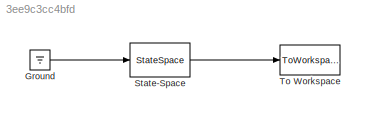
MODEL slx_3ee9c3cc4bfd
KIND model
CONFIG AbsTol = auto
CONFIG EnableMultiTasking = on
CONFIG FixedStep = 1e-2
CONFIG MaxStep = auto
CONFIG MinStep = auto
CONFIG RelTol = 1e-3
CONFIG SampleTimeConstraint = Unconstrained
CONFIG Solver = ode4
CONFIG SolverName = ode4
CONFIG StartTime = 0.0
CONFIG StopTime = 10.0
BLOCK [Ground] Ground
BLOCK [StateSpace] State-Space
  A = A
  B = [0;0]
  C = eye(2)
  D = [0;0]
  InitialCondition = WPC
  Ports = [1, 1]
BLOCK [ToWorkspace] To Workspace
  MaxDataPoints = inf
  Ports = [1]
  SampleTime = -1
  VariableName = x
LINE Ground:1 -> State-Space:1
LINE State-Space:1 -> To Workspace:1
